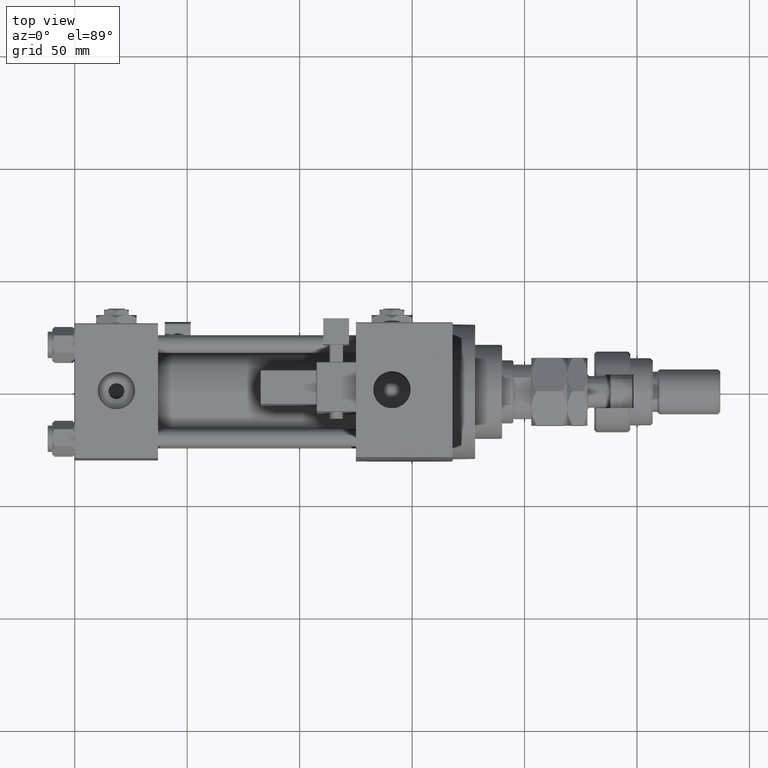
[diagram: clean part render]
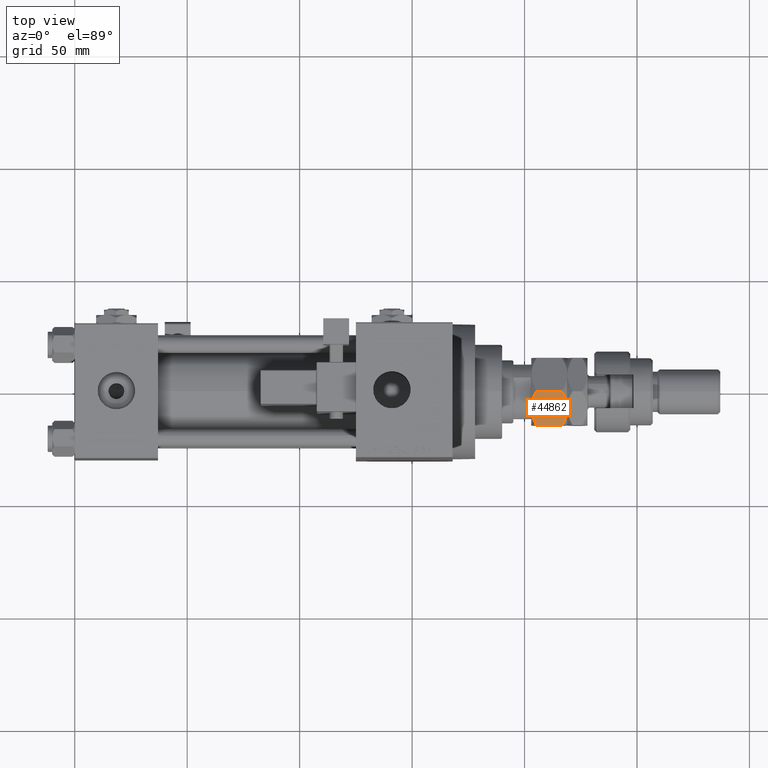
[diagram: same view with one face highlighted and labeled with its STEP entity id]
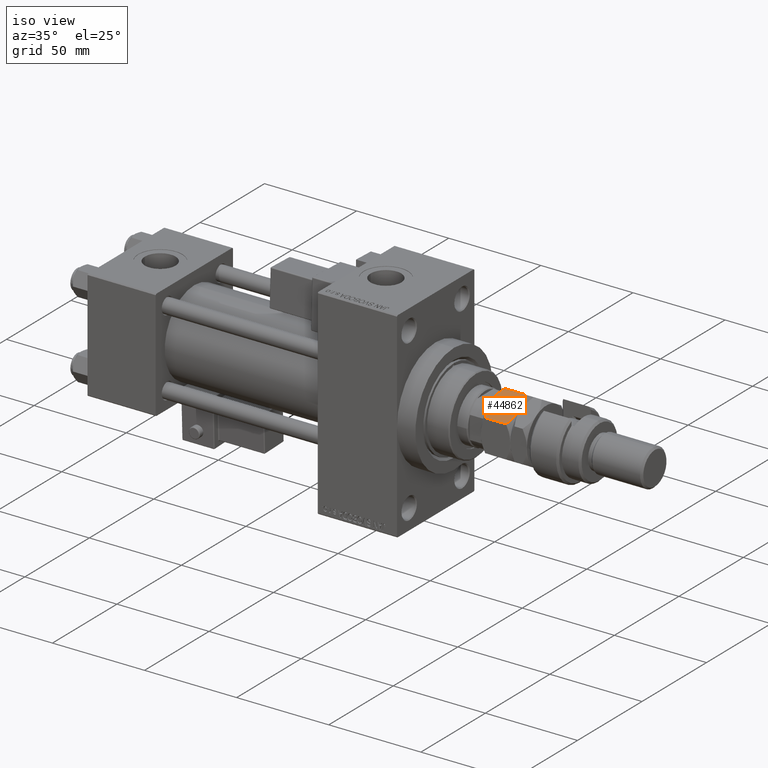
[diagram: same view with one face highlighted and labeled with its STEP entity id]
A machine part, top view. The second image highlights one B-rep face of the part: STEP entity #44862.
A second angle (iso view) of the same face is appended — the face is thin or edge-on in the first view.
In plain terms, the highlighted planar face has unit normal (0, 0.5, -0.866).
Its self-contained STEP definition (entity closure, byte-faithful):
#980 = EDGE_LOOP ( 'NONE', ( #9017, #53579, #44671, #20178, #12131, #31217 ) ) ;
#1111 = CARTESIAN_POINT ( 'NONE',  ( -3.035766082959412415E-15, -17.32050807568877104, 16.00000000000000000 ) ) ;
#1405 = CARTESIAN_POINT ( 'NONE',  ( -8.156876182308250733, -12.61113341608665905, 16.00000000000000355 ) ) ;
#1514 = B_SPLINE_CURVE_WITH_KNOTS ( 'NONE', 3,
 ( #23220, #6106, #39794, #52510, #31492, #47527, #1405, #18250 ),
 .UNSPECIFIED., .F., .F.,
 ( 4, 2, 2, 4 ),
 ( 2.544309033641602453E-07, 0.004488823491893906108, 0.006733108022389176252, 0.008977392552884447263 ),
 .UNSPECIFIED. ) ;
#1547 = EDGE_CURVE ( 'NONE', #54219, #6572, #22093, .T. ) ;
#1563 = CARTESIAN_POINT ( 'NONE',  ( -6.195449321423087241, -13.74356374221446586, 16.00000000000001066 ) ) ;
#3423 = VECTOR ( 'NONE', #44506, 1000.000000000000000 ) ;
#4141 = EDGE_CURVE ( 'NONE', #25804, #54219, #31703, .T. ) ;
#4386 = CARTESIAN_POINT ( 'NONE',  ( -7.500000000000000000, -12.99038105676658006, 0.000000000000000000 ) ) ;
#5710 = CARTESIAN_POINT ( 'NONE',  ( -1.174746544192163844, -16.64226784216984711, 14.35773215783022572 ) ) ;
#6106 = CARTESIAN_POINT ( 'NONE',  ( -13.82389157469335750, -9.339280553791368789, 14.35851844025821933 ) ) ;
#6572 = VERTEX_POINT ( 'NONE', #7386 ) ;
#7266 = CARTESIAN_POINT ( 'NONE',  ( -6.176419610670697224, -13.75455055083996214, 0.05953537397470286957 ) ) ;
#7386 = CARTESIAN_POINT ( 'NONE',  ( -2.796947266322166691E-15, -17.32050807568877104, 2.320508075688761718 ) ) ;
#9017 = ORIENTED_EDGE ( 'NONE', *, *, #9066, .F. ) ;
#9066 = EDGE_CURVE ( 'NONE', #6572, #12299, #53553, .T. ) ;
#11960 = B_SPLINE_CURVE_WITH_KNOTS ( 'NONE', 3,
 ( #35918, #40892, #20717, #16033, #24571, #28722 ),
 .UNSPECIFIED., .F., .F.,
 ( 4, 2, 4 ),
 ( 0.008977392552884445528, 0.01343452311421656012, 0.01789165367554867297 ),
 .UNSPECIFIED. ) ;
#12131 = ORIENTED_EDGE ( 'NONE', *, *, #21758, .T. ) ;
#12299 = VERTEX_POINT ( 'NONE', #4386 ) ;
#14115 = PLANE ( 'NONE',  #16955 ) ;
#14979 = CARTESIAN_POINT ( 'NONE',  ( -7.500000000000000000, -12.99038105676658006, 0.000000000000000000 ) ) ;
#15511 = CARTESIAN_POINT ( 'NONE',  ( -14.99999999999999645, -8.660254037844389075, 13.67949192431124139 ) ) ;
#16033 = CARTESIAN_POINT ( 'NONE',  ( -12.61607045183964715, -10.03661640420386902, 1.060479031370877845 ) ) ;
#16955 = AXIS2_PLACEMENT_3D ( 'NONE', #31219, #30948, #18818 ) ;
#17949 = DIRECTION ( 'NONE',  ( -0.000000000000000000, -0.000000000000000000, -1.000000000000000000 ) ) ;
#18250 = CARTESIAN_POINT ( 'NONE',  ( -7.500000000000001776, -12.99038105676658361, 16.00000000000000000 ) ) ;
#18818 = DIRECTION ( 'NONE',  ( -0.8660254037844385966, 0.4999999999999999445, 0.000000000000000000 ) ) ;
#19102 = LINE ( 'NONE', #48662, #3423 ) ;
#20178 = ORIENTED_EDGE ( 'NONE', *, *, #43907, .F. ) ;
#20717 = CARTESIAN_POINT ( 'NONE',  ( -10.08691881950258740, -11.49682277995505331, 0.2303299219392165864 ) ) ;
#21758 = EDGE_CURVE ( 'NONE', #26867, #23371, #19102, .T. ) ;
#22093 = LINE ( 'NONE', #1111, #30669 ) ;
#22980 = CARTESIAN_POINT ( 'NONE',  ( -4.881674457977378090, -14.50207201327941320, 0.2838026619462943323 ) ) ;
#23220 = CARTESIAN_POINT ( 'NONE',  ( -14.99999999999999645, -8.660254037844389075, 13.67949192431124139 ) ) ;
#23371 = VERTEX_POINT ( 'NONE', #28030 ) ;
#24571 = CARTESIAN_POINT ( 'NONE',  ( -13.82525345580783060, -9.338494271363318333, 1.642267842169780279 ) ) ;
#25804 = VERTEX_POINT ( 'NONE', #47000 ) ;
#25922 = CARTESIAN_POINT ( 'NONE',  ( -3.416099238086855886E-15, -17.32050807568877104, 13.67949192431124317 ) ) ;
#26867 = VERTEX_POINT ( 'NONE', #15511 ) ;
#28030 = CARTESIAN_POINT ( 'NONE',  ( -14.99999999999999645, -8.660254037844389075, 2.320508075688762606 ) ) ;
#28722 = CARTESIAN_POINT ( 'NONE',  ( -14.99999999999999645, -8.660254037844389075, 2.320508075688762606 ) ) ;
#30669 = VECTOR ( 'NONE', #17949, 1000.000000000000000 ) ;
#30948 = DIRECTION ( 'NONE',  ( 0.5000000000000000000, 0.8660254037844387076, -0.000000000000000000 ) ) ;
#31217 = ORIENTED_EDGE ( 'NONE', *, *, #54194, .F. ) ;
#31219 = CARTESIAN_POINT ( 'NONE',  ( -14.99999999999999645, -8.660254037844389075, 16.00000000000000000 ) ) ;
#31254 = CARTESIAN_POINT ( 'NONE',  ( -1.176108425306644722, -16.64148155974179488, 1.641481559741788665 ) ) ;
#31492 = CARTESIAN_POINT ( 'NONE',  ( -10.11832554202262102, -11.47869010025374692, 15.71619733805371411 ) ) ;
#31703 = B_SPLINE_CURVE_WITH_KNOTS ( 'NONE', 3,
 ( #51839, #1563, #35800, #34977, #5710, #48507 ),
 .UNSPECIFIED., .F., .F.,
 ( 4, 2, 4 ),
 ( 0.008977392552884447263, 0.01343452311421656359, 0.01789165367554867991 ),
 .UNSPECIFIED. ) ;
#34977 = CARTESIAN_POINT ( 'NONE',  ( -2.383929548160354628, -15.94414570932928576, 14.93952096862912526 ) ) ;
#35800 = CARTESIAN_POINT ( 'NONE',  ( -4.913081180497412603, -14.48393933357810504, 15.76967007806078946 ) ) ;
#35918 = CARTESIAN_POINT ( 'NONE',  ( -7.500000000000000000, -12.99038105676658006, 0.000000000000000000 ) ) ;
#36214 = FACE_OUTER_BOUND ( 'NONE', #980, .T. ) ;
#36247 = CARTESIAN_POINT ( 'NONE',  ( -6.843123817691746602, -13.36962869744650284, -3.760826285809093999E-16 ) ) ;
#39794 = CARTESIAN_POINT ( 'NONE',  ( -12.62116548881249223, -10.03367478323606221, 14.93551393225599533 ) ) ;
#40892 = CARTESIAN_POINT ( 'NONE',  ( -8.804550678576912759, -12.23719837131869248, -4.878909776184767981E-16 ) ) ;
#43907 = EDGE_CURVE ( 'NONE', #26867, #25804, #1514, .T. ) ;
#44506 = DIRECTION ( 'NONE',  ( -0.000000000000000000, -0.000000000000000000, -1.000000000000000000 ) ) ;
#44671 = ORIENTED_EDGE ( 'NONE', *, *, #4141, .F. ) ;
#44862 = ADVANCED_FACE ( 'NONE', ( #36214 ), #14115, .F. ) ;
#47000 = CARTESIAN_POINT ( 'NONE',  ( -7.500000000000001776, -12.99038105676658361, 16.00000000000000000 ) ) ;
#47527 = CARTESIAN_POINT ( 'NONE',  ( -8.823580389329300999, -12.22621156269320331, 15.94046462602529957 ) ) ;
#48507 = CARTESIAN_POINT ( 'NONE',  ( -3.416099238086855886E-15, -17.32050807568877104, 13.67949192431124317 ) ) ;
#48662 = CARTESIAN_POINT ( 'NONE',  ( -14.99999999999999645, -8.660254037844389075, 16.00000000000000000 ) ) ;
#51839 = CARTESIAN_POINT ( 'NONE',  ( -7.500000000000001776, -12.99038105676658361, 16.00000000000000000 ) ) ;
#52510 = CARTESIAN_POINT ( 'NONE',  ( -10.75222765045651308, -11.11270654730956409, 15.55242859148697576 ) ) ;
#52558 = CARTESIAN_POINT ( 'NONE',  ( -2.796947266322166691E-15, -17.32050807568877104, 2.320508075688761718 ) ) ;
#52833 = CARTESIAN_POINT ( 'NONE',  ( -4.247772349543487813, -14.86805556622358893, 0.4475714085130264031 ) ) ;
#53382 = CARTESIAN_POINT ( 'NONE',  ( -2.378834511187505996, -15.94708733029708725, 1.064486067744005560 ) ) ;
#53553 = B_SPLINE_CURVE_WITH_KNOTS ( 'NONE', 3,
 ( #52558, #31254, #53382, #52833, #22980, #7266, #36247, #14979 ),
 .UNSPECIFIED., .F., .F.,
 ( 4, 2, 2, 4 ),
 ( 2.544309033648719118E-07, 0.004488823491893905240, 0.006733108022389175384, 0.008977392552884445528 ),
 .UNSPECIFIED. ) ;
#53579 = ORIENTED_EDGE ( 'NONE', *, *, #1547, .F. ) ;
#54194 = EDGE_CURVE ( 'NONE', #12299, #23371, #11960, .T. ) ;
#54219 = VERTEX_POINT ( 'NONE', #25922 ) ;